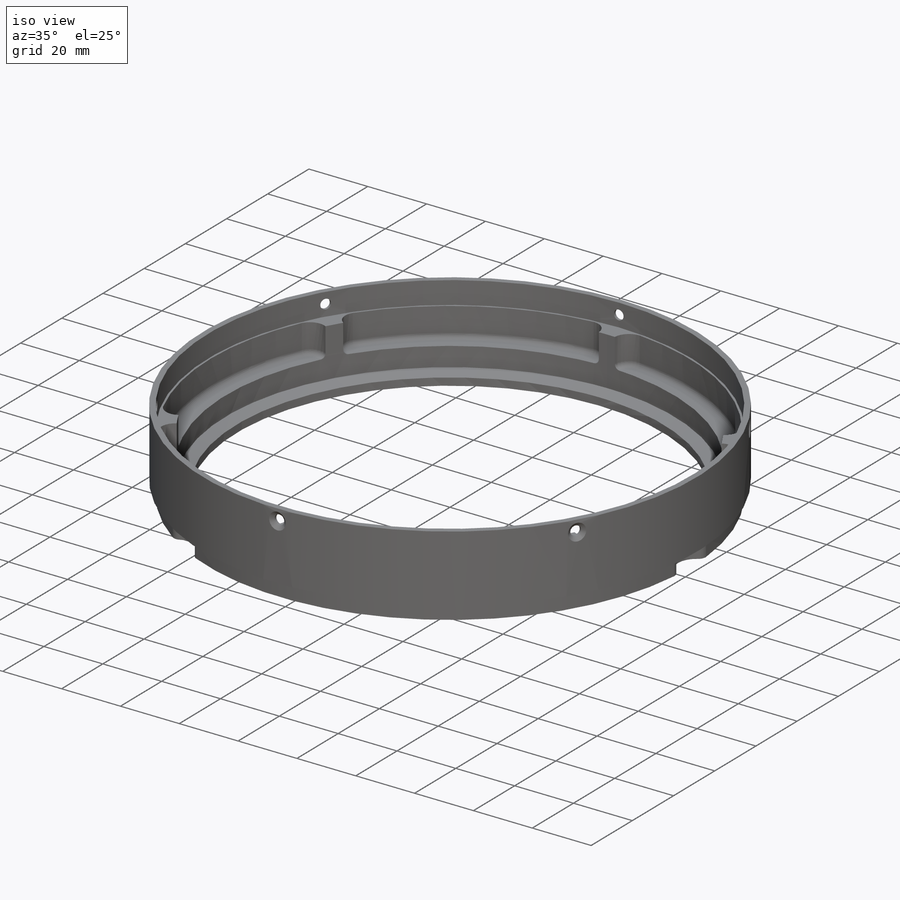
[diagram: iso view]
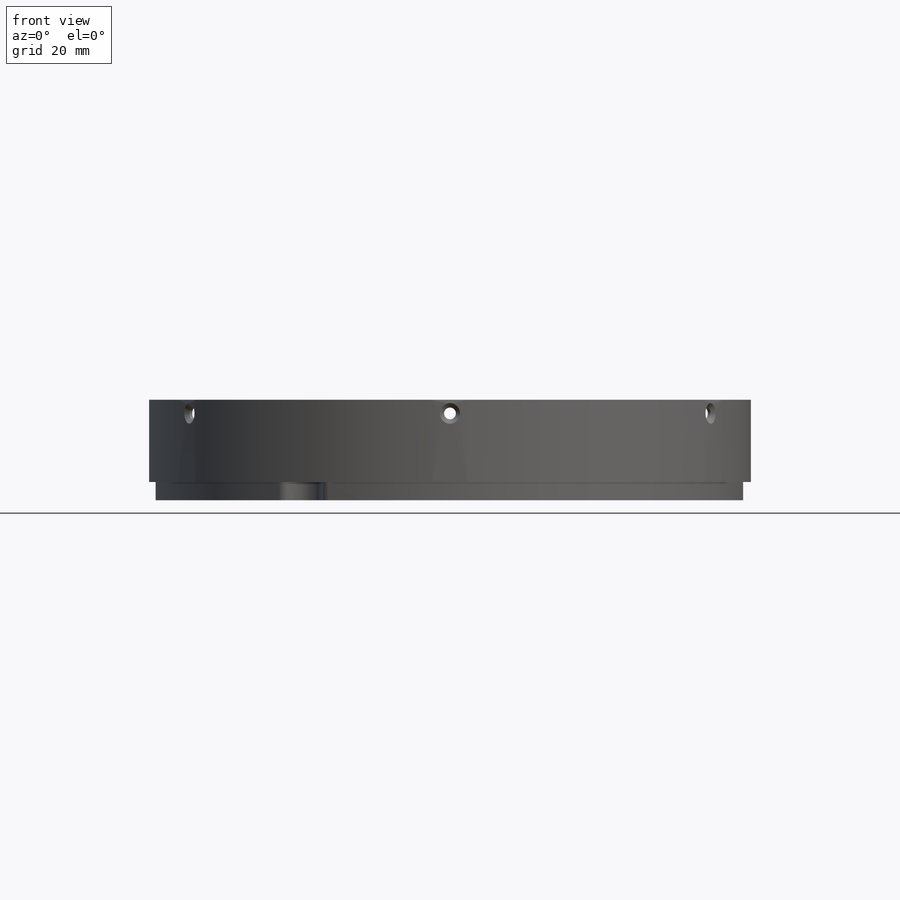
[diagram: front view]
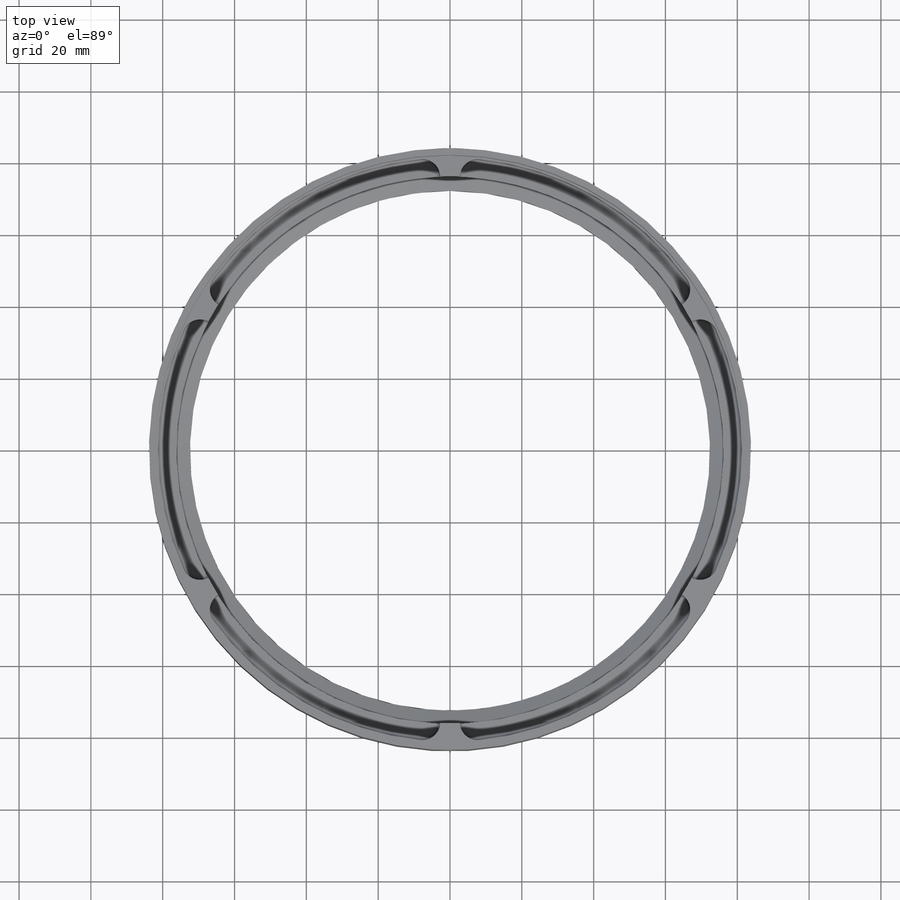
[diagram: top view]
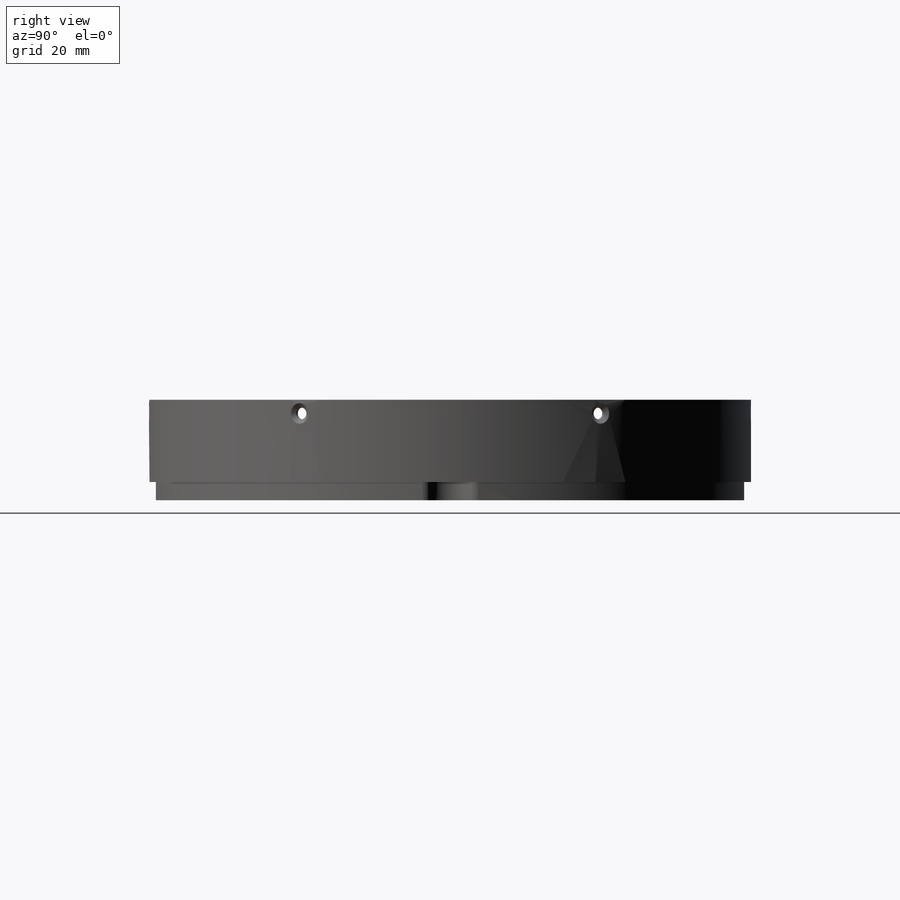
[diagram: right view]
SOLIDWORKS PART (.sldprt)
format: sldprt  version: not decoded by parser v0  size: 481,792 bytes
history: native  units: mm
features: sketch x7, plane x4, pattern_circular x3, cut_extrude x2, fillet x2, material x1, revolve x1, cut_revolve x1 (+13 scaffold rows collapsed)
feature tree (34):
  scaffold x13  (default folders/planes/origin — collapsed)
  material  "Material <not specified>"
  sketch  "Sketch1"  dims[c1.D1=166.878mm c1.D2=~5.461347mm c2.D2=45.0deg c2.D3=~5.213104mm c3.D3=45.0deg c3.D4=3.81mm c3.D5=~25.183691mm c4.D5=20.0deg c4.D6=~0.679407mm c5.D6=60.0deg c5.D7=0.8321mm c6.D7=45.0deg c7.D7=~1.176768mm c8.D7=60.0deg c8.D8=144.78mm c8.D9=3.81mm c8.D10=~1.069688mm c8.D5=3.81mm c9.D10=1.905mm c9.D11=~1.019111mm c9.D6=1.016mm c9.D7=~1.064505mm c10.D7=60.0deg c10.D11=1.016mm c11.D11=60.0deg c11.D12=50.8mm c11.D13=12.7mm c11.D14=2.54mm c11.D15=~23.632604mm c12.D15=20.0deg c12.D16=6.35mm c12.D17=151.638mm c12.D9=152.4mm c12.D12=5.6896mm c12.D13=0.0mm c13.D17=3.81mm c13.D5=6.731mm c14.D17=10.16mm c14.D16=10.16mm c14.D18=0.381mm c14.D19=0.635mm c14.D20=~33.600891mm c15.D16=166.878mm c15.D18=166.878mm c15.D5=5.6896mm c15.D12=166.878mm c15.D13=1.905mm c16.D16=~0.586588mm c16.D18=44.45mm c16.D6=1.016mm c16.D7=1.016mm c17.D7=60.0deg c17.D11=1.016mm c18.D11=60.0deg c18.D19=9.525mm c18.D15=~4.033958mm c19.D15=15.0deg c19.D19=5.08mm c19.D20=4.445mm c20.D19=3.81mm c20.D20=5.715mm c20.D21=17.4498mm c20.D22=72.39mm c20.D6=5.08mm c20.D7=144.78mm c20.D3=152.4mm c21.D7=31.75mm c21.D9=16.51mm c22.D9=5.0deg c22.D10=163.068mm c22.D2=16.51mm c23.D2=5.0deg c23.D6=163.957mm c23.D4=3.81mm c24.D4=20.0deg c24.D7=~31.752012mm c24.D5=7.62mm c25.D7=1.8796mm c25.D9=8.382mm c25.D10=0.381mm c25.D11=~29.974012mm c25.D13=167.64mm c25.D2=5.08mm c26.D11=~27.992812mm c26.D15=~24.066085mm c26.D9=167.64mm c26.D10=2.286mm]
  revolve  "Revolve1"  Angle=360deg
  sketch  "Sketch2"  dims[c1.D1=8.5852mm c1.D3=8.5852mm c2.D1=4.9276mm c2.D2=~38.575846mm c3.D2=24.25deg c3.D3=76.2mm c4.D3=5.75deg c4.D4=1.524mm c4.D2=~76.35916mm c5.D2=24.25deg c5.D3=~75.322914mm c6.D3=5.75deg]
  cut_extrude  "Cut-Extrude1"  Depth=17.526mm
  fillet  "Fillet1"  Radius=1.5875mm
  pattern_circular  "CirPattern2"  Count=6 Angle=60deg
  plane  "Plane1"
  sketch  "Sketch5"  dims[c1.D1=3.048mm c1.D2=3.81mm c2.D1=3.81mm]
  plane  "Plane2"
  sketch  "Sketch6"  dims[c1.D1=~6.014621mm c2.D1=50.0deg c2.D2=5.715mm c2.D3=3.2766mm]
  cut_revolve  "Cut-Revolve1"  Angle=360deg
  pattern_circular  "CirPattern3"  Count=6 Angle=360deg
  plane  "Plane3"  Offset=3.81mm
  sketch  "Sketch9"  dims[c1.D1=12.7mm c1.D2=12.7mm c1.D3=167.64mm c2.D2=11.43mm]
  cut_extrude  "Cut-Extrude2"  Depth=5.08mm
  fillet  "Fillet2"  Radius=2.54mm
  pattern_circular  "CirPattern5"  Count=3 Angle=360deg
  sketch  "Sketch10"  dims[D1=167.64mm D2=167.64mm]
  plane  "Plane4"  Offset=2.54mm
  sketch  "Sketch11"  dims[D1=167.64mm D2=167.64mm]
decode coverage: 16 of 16 modeling features carry decoded parameters
note: ~ marks probable driven/reference dimensions
note: suppression state not decoded; provenance and decode notes live in map.json
